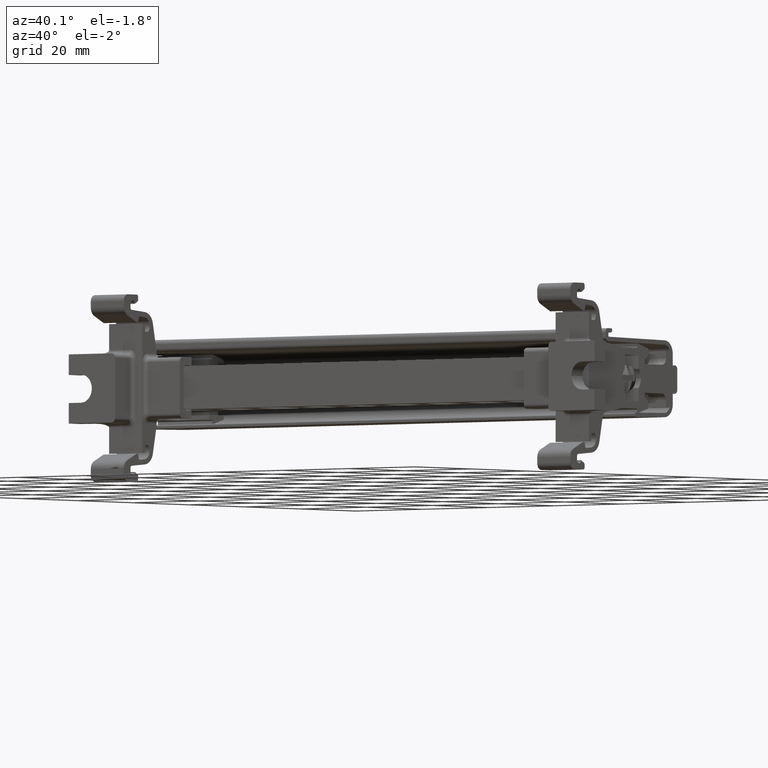
[diagram: clean part render]
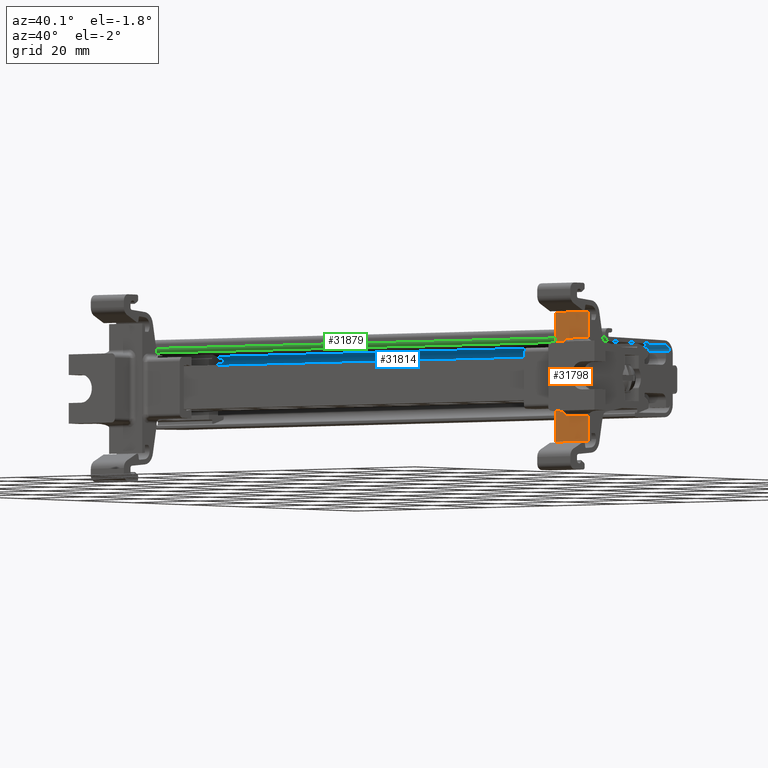
[diagram: same view with three faces highlighted in distinct colors, each labeled with its STEP entity id]
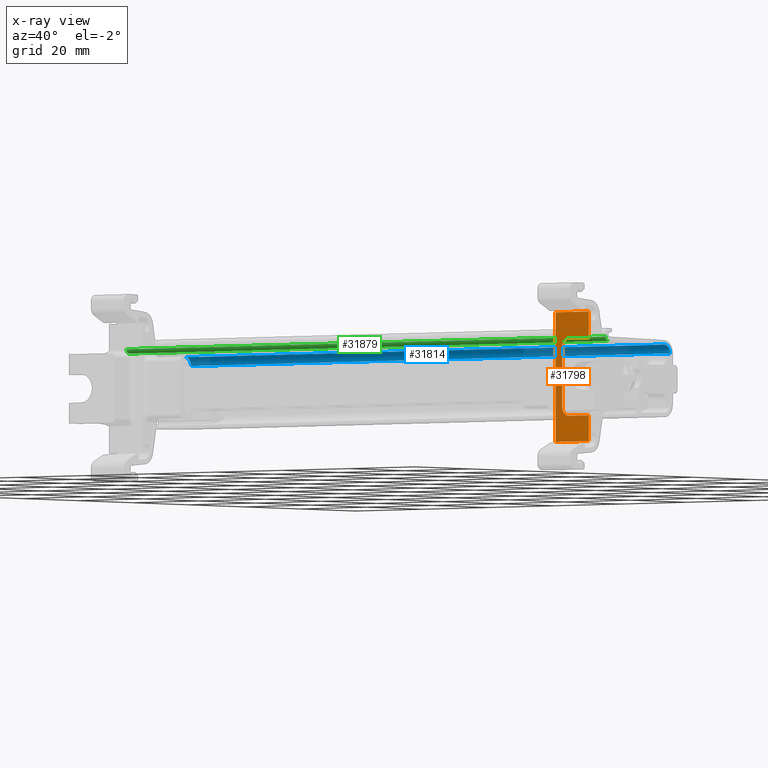
[diagram: x-ray of the same camera — body ghosted, the three highlighted faces saturated]
A machine part, auxiliary view with three faces highlighted in distinct colors.
The next image is the same camera in x-ray (body ghosted, the three faces saturated) — at least one of them is partly hidden behind the body in this view.
Their STEP definitions:

[orange] entity #31798 — the highlighted planar face has unit normal (-0, -1, -0).
#6073 = B_SPLINE_CURVE_WITH_KNOTS ( 'NONE', 3,
 ( #27535, #27526, #27530, #27558, #27536, #27544, #27525, #27537, #27550, #27548, #27516, #27539, #27561, #27521, #27551, #27559, #27560, #27528, #27552, #27553 ),
 .UNSPECIFIED., .F., .F.,
 ( 4, 1, 1, 1, 2, 2, 2, 1, 1, 1, 2, 2, 4 ),
 ( 0.0000000000000000000, 0.1250000000000341100, 0.1875000000000477400, 0.2187500000000546000, 0.2343750000000579800, 0.2500000000000614000, 0.5000000000000715000, 0.6250000000000742700, 0.6875000000000757200, 0.7187500000000736100, 0.7343750000000696100, 0.7500000000000656100, 1.000000000000000000 ),
 .UNSPECIFIED. ) ;
#6101 = B_SPLINE_CURVE_WITH_KNOTS ( 'NONE', 3,
 ( #27565, #27607, #27608, #27612, #27583, #27571, #27566, #27572, #27592, #27567, #27594, #27590, #27574, #27579, #27580, #27575, #27578, #27616, #27618, #27659 ),
 .UNSPECIFIED., .F., .F.,
 ( 4, 1, 1, 1, 2, 2, 2, 1, 1, 1, 2, 2, 4 ),
 ( 0.0000000000000000000, 0.1249999999999758500, 0.1874999999999634500, 0.2187499999999539500, 0.2343749999999497300, 0.2499999999999455200, 0.4999999999999612500, 0.6249999999999680300, 0.6874999999999701400, 0.7187499999999725800, 0.7343749999999738000, 0.7499999999999750200, 1.000000000000000000 ),
 .UNSPECIFIED. ) ;
#6396 = EDGE_CURVE ( 'NONE', #12249, #12316, #14030, .T. ) ;
#6399 = EDGE_CURVE ( 'NONE', #12257, #12317, #14037, .T. ) ;
#9098 = VECTOR ( 'NONE', #27475, 1000.000000000000000 ) ;
#9120 = VECTOR ( 'NONE', #27459, 1000.000000000000000 ) ;
#9132 = VECTOR ( 'NONE', #27438, 1000.000000000000000 ) ;
#9162 = VECTOR ( 'NONE', #27582, 1000.000000000000000 ) ;
#9194 = VECTOR ( 'NONE', #27687, 1000.000000000000000 ) ;
#9202 = VECTOR ( 'NONE', #27642, 1000.000000000000000 ) ;
#9209 = VECTOR ( 'NONE', #27672, 1000.000000000000000 ) ;
#9758 = VECTOR ( 'NONE', #27420, 1000.000000000000000 ) ;
#12249 = VERTEX_POINT ( 'NONE', #18142 ) ;
#12257 = VERTEX_POINT ( 'NONE', #18158 ) ;
#12261 = VERTEX_POINT ( 'NONE', #18172 ) ;
#12269 = VERTEX_POINT ( 'NONE', #18181 ) ;
#12303 = VERTEX_POINT ( 'NONE', #18206 ) ;
#12314 = VERTEX_POINT ( 'NONE', #18236 ) ;
#12316 = VERTEX_POINT ( 'NONE', #18225 ) ;
#12317 = VERTEX_POINT ( 'NONE', #18221 ) ;
#12333 = VERTEX_POINT ( 'NONE', #18247 ) ;
#12336 = VERTEX_POINT ( 'NONE', #18231 ) ;
#14015 = CARTESIAN_POINT ( 'NONE',  ( 45.04730230417584400, 43.96882648293763700, 49.54146295254220400 ) ) ;
#14021 = DIRECTION ( 'NONE',  ( -2.265165414331192000E-043, -2.868178419334055400E-029, 1.000000000000000000 ) ) ;
#14030 = LINE ( 'NONE', #14015, #14261 ) ;
#14035 = DIRECTION ( 'NONE',  ( -2.265165414331192000E-043, -2.868178419334055400E-029, 1.000000000000000000 ) ) ;
#14037 = LINE ( 'NONE', #14038, #14325 ) ;
#14038 = CARTESIAN_POINT ( 'NONE',  ( 45.04730230417590800, 43.96882648293763700, 49.54146295254220400 ) ) ;
#14261 = VECTOR ( 'NONE', #14035, 1000.000000000000000 ) ;
#14325 = VECTOR ( 'NONE', #14021, 1000.000000000000000 ) ;
#15626 = EDGE_LOOP ( 'NONE', ( #18603, #18596, #18664, #18636, #18683, #18612, #18650, #18647, #18687, #18642, #18670, #18656 ) ) ;
#16396 = EDGE_CURVE ( 'NONE', #12336, #12249, #27394, .T. ) ;
#16438 = EDGE_CURVE ( 'NONE', #12316, #12314, #27450, .T. ) ;
#16454 = EDGE_CURVE ( 'NONE', #12314, #33135, #27464, .T. ) ;
#16461 = EDGE_CURVE ( 'NONE', #12317, #12333, #27512, .T. ) ;
#16505 = EDGE_CURVE ( 'NONE', #12261, #12336, #6073, .T. ) ;
#16522 = EDGE_CURVE ( 'NONE', #12269, #12257, #27605, .T. ) ;
#16537 = EDGE_CURVE ( 'NONE', #12333, #12303, #6101, .T. ) ;
#16549 = EDGE_CURVE ( 'NONE', #33144, #12269, #27604, .T. ) ;
#16581 = EDGE_CURVE ( 'NONE', #33135, #33144, #27665, .T. ) ;
#16594 = EDGE_CURVE ( 'NONE', #12303, #12261, #27670, .T. ) ;
#18142 = CARTESIAN_POINT ( 'NONE',  ( 45.04730230417573700, 43.96882648293763700, 47.07664888101834300 ) ) ;
#18158 = CARTESIAN_POINT ( 'NONE',  ( 45.04730230417591500, 43.96882648293763700, 23.07587375111847500 ) ) ;
#18172 = CARTESIAN_POINT ( 'NONE',  ( 37.04730230417585100, 43.96882648293768600, 45.07664888101836500 ) ) ;
#18181 = CARTESIAN_POINT ( 'NONE',  ( 35.04730230417587200, 43.96882648293771500, 23.07587375111845400 ) ) ;
#18206 = CARTESIAN_POINT ( 'NONE',  ( 37.04730230417585800, 43.96882648293769300, 31.07865108636482500 ) ) ;
#18221 = CARTESIAN_POINT ( 'NONE',  ( 45.04730230417582200, 43.96882648293763700, 29.07865108636482500 ) ) ;
#18225 = CARTESIAN_POINT ( 'NONE',  ( 45.04730230417582200, 43.96882648293763700, 53.07942621626468600 ) ) ;
#18231 = CARTESIAN_POINT ( 'NONE',  ( 39.04730230417583700, 43.96882648293766500, 47.07664888101835000 ) ) ;
#18236 = CARTESIAN_POINT ( 'NONE',  ( 35.04730230417581500, 43.96882648293771500, 53.07942621626468600 ) ) ;
#18247 = CARTESIAN_POINT ( 'NONE',  ( 39.04730230417585800, 43.96882648293766500, 29.07865108636482900 ) ) ;
#18596 = ORIENTED_EDGE ( 'NONE', *, *, #16454, .T. ) ;
#18603 = ORIENTED_EDGE ( 'NONE', *, *, #16438, .T. ) ;
#18612 = ORIENTED_EDGE ( 'NONE', *, *, #6399, .T. ) ;
#18636 = ORIENTED_EDGE ( 'NONE', *, *, #16549, .T. ) ;
#18642 = ORIENTED_EDGE ( 'NONE', *, *, #16505, .T. ) ;
#18647 = ORIENTED_EDGE ( 'NONE', *, *, #16537, .T. ) ;
#18650 = ORIENTED_EDGE ( 'NONE', *, *, #16461, .T. ) ;
#18656 = ORIENTED_EDGE ( 'NONE', *, *, #6396, .T. ) ;
#18664 = ORIENTED_EDGE ( 'NONE', *, *, #16581, .T. ) ;
#18670 = ORIENTED_EDGE ( 'NONE', *, *, #16396, .T. ) ;
#18683 = ORIENTED_EDGE ( 'NONE', *, *, #16522, .T. ) ;
#18687 = ORIENTED_EDGE ( 'NONE', *, *, #16594, .T. ) ;
#21372 = AXIS2_PLACEMENT_3D ( 'NONE', #28307, #28309, #28258 ) ;
#21744 = CARTESIAN_POINT ( 'NONE',  ( 35.04730230417583700, 43.96882648293625800, 44.11624998369231300 ) ) ;
#21751 = CARTESIAN_POINT ( 'NONE',  ( 35.04730230417585100, 43.96882648293697600, 32.03904998369085200 ) ) ;
#27394 = LINE ( 'NONE', #27424, #9758 ) ;
#27420 = DIRECTION ( 'NONE',  ( 1.000000000000000000, -7.897574987183420400E-015, 0.0000000000000000000 ) ) ;
#27424 = CARTESIAN_POINT ( 'NONE',  ( 35.04730230417582200, 43.96882648293771500, 47.07664888101834300 ) ) ;
#27438 = DIRECTION ( 'NONE',  ( 2.265165414331192000E-043, 2.868178419334055400E-029, -1.000000000000000000 ) ) ;
#27439 = CARTESIAN_POINT ( 'NONE',  ( 35.04730230417582200, 43.96882648293771500, 53.07942621626467900 ) ) ;
#27450 = LINE ( 'NONE', #27439, #9120 ) ;
#27451 = CARTESIAN_POINT ( 'NONE',  ( 35.04730230417580800, 43.96882648293771500, 49.54146295254220400 ) ) ;
#27459 = DIRECTION ( 'NONE',  ( -1.000000000000000000, 7.897574987183420400E-015, -0.0000000000000000000 ) ) ;
#27464 = LINE ( 'NONE', #27451, #9132 ) ;
#27475 = DIRECTION ( 'NONE',  ( -1.000000000000000000, 7.897574987183420400E-015, -0.0000000000000000000 ) ) ;
#27482 = CARTESIAN_POINT ( 'NONE',  ( 35.04730230417582200, 43.96882648293771500, 29.07865108636482500 ) ) ;
#27512 = LINE ( 'NONE', #27482, #9098 ) ;
#27516 = CARTESIAN_POINT ( 'NONE',  ( 37.73056935672652700, 43.96882648293767900, 46.58839556358166300 ) ) ;
#27521 = CARTESIAN_POINT ( 'NONE',  ( 38.20034925418338600, 43.96882648293768600, 46.88912032210673400 ) ) ;
#27525 = CARTESIAN_POINT ( 'NONE',  ( 37.17622294008984300, 43.96882648293771500, 45.78326460557789800 ) ) ;
#27526 = CARTESIAN_POINT ( 'NONE',  ( 37.04736979277775100, 43.96882648293770800, 45.20389262284343300 ) ) ;
#27528 = CARTESIAN_POINT ( 'NONE',  ( 38.54706164000670300, 43.96882648293769300, 47.02970591532934500 ) ) ;
#27530 = CARTESIAN_POINT ( 'NONE',  ( 37.06497333396355000, 43.96882648293770800, 45.39134910660266100 ) ) ;
#27535 = CARTESIAN_POINT ( 'NONE',  ( 37.04730230417585100, 43.96882648293768600, 45.07664888101836500 ) ) ;
#27536 = CARTESIAN_POINT ( 'NONE',  ( 37.14938035015536100, 43.96882648293771500, 45.70895749568527600 ) ) ;
#27537 = CARTESIAN_POINT ( 'NONE',  ( 37.18138502682836600, 43.96882648293770000, 45.79680999215158000 ) ) ;
#27539 = CARTESIAN_POINT ( 'NONE',  ( 37.88843283582554700, 43.96882648293769300, 46.71721578369330500 ) ) ;
#27544 = CARTESIAN_POINT ( 'NONE',  ( 37.16526712526250300, 43.96882648293769300, 45.75358437573307000 ) ) ;
#27548 = CARTESIAN_POINT ( 'NONE',  ( 37.43812751195525100, 43.96882648293770000, 46.29579620301098000 ) ) ;
#27550 = CARTESIAN_POINT ( 'NONE',  ( 37.28917650561341900, 43.96882648293771500, 46.06929122799113700 ) ) ;
#27551 = CARTESIAN_POINT ( 'NONE',  ( 38.24745555180126600, 43.96882648293768600, 46.90985448139564800 ) ) ;
#27552 = CARTESIAN_POINT ( 'NONE',  ( 38.79245811304793500, 43.96882648293768600, 47.07651371462107200 ) ) ;
#27553 = CARTESIAN_POINT ( 'NONE',  ( 39.04730230417583700, 43.96882648293766500, 47.07664888101835000 ) ) ;
#27558 = CARTESIAN_POINT ( 'NONE',  ( 37.11613983817555600, 43.96882648293770800, 45.60408236194307800 ) ) ;
#27559 = CARTESIAN_POINT ( 'NONE',  ( 38.27910230347804800, 43.96882648293768600, 46.92331309883464000 ) ) ;
#27560 = CARTESIAN_POINT ( 'NONE',  ( 38.29636608786746200, 43.96882648293769300, 46.93038295613157400 ) ) ;
#27561 = CARTESIAN_POINT ( 'NONE',  ( 38.09298136902270900, 43.96882648293767200, 46.83691698518624900 ) ) ;
#27565 = CARTESIAN_POINT ( 'NONE',  ( 39.04730230417585800, 43.96882648293766500, 29.07865108636482900 ) ) ;
#27566 = CARTESIAN_POINT ( 'NONE',  ( 38.34068657961742600, 43.96882648293770000, 29.20757172227878900 ) ) ;
#27567 = CARTESIAN_POINT ( 'NONE',  ( 37.82815498219245900, 43.96882648293771500, 29.46947629413412200 ) ) ;
#27571 = CARTESIAN_POINT ( 'NONE',  ( 38.37036680946317800, 43.96882648293768600, 29.19661590745145200 ) ) ;
#27572 = CARTESIAN_POINT ( 'NONE',  ( 38.32714119304238700, 43.96882648293770000, 29.21273380901766400 ) ) ;
#27574 = CARTESIAN_POINT ( 'NONE',  ( 37.28703420000191900, 43.96882648293769300, 30.12433015121828500 ) ) ;
#27575 = CARTESIAN_POINT ( 'NONE',  ( 37.20063808635846000, 43.96882648293770000, 30.31045108566822300 ) ) ;
#27578 = CARTESIAN_POINT ( 'NONE',  ( 37.19356822906264200, 43.96882648293768600, 30.32771487005565800 ) ) ;
#27579 = CARTESIAN_POINT ( 'NONE',  ( 37.23483086308396400, 43.96882648293770000, 30.23169803637621600 ) ) ;
#27580 = CARTESIAN_POINT ( 'NONE',  ( 37.21409670379645000, 43.96882648293769300, 30.27880433399255700 ) ) ;
#27582 = DIRECTION ( 'NONE',  ( 1.000000000000000000, -7.897574987183420400E-015, 0.0000000000000000000 ) ) ;
#27583 = CARTESIAN_POINT ( 'NONE',  ( 38.41499368951227900, 43.96882648293768600, 29.18072913234429300 ) ) ;
#27590 = CARTESIAN_POINT ( 'NONE',  ( 37.40673540149285300, 43.96882648293769300, 29.91978161802331800 ) ) ;
#27592 = CARTESIAN_POINT ( 'NONE',  ( 38.05465995720777500, 43.96882648293770800, 29.32052528779682600 ) ) ;
#27594 = CARTESIAN_POINT ( 'NONE',  ( 37.53555562160794800, 43.96882648293770000, 29.76191813892054900 ) ) ;
#27596 = CARTESIAN_POINT ( 'NONE',  ( 35.04730230417582200, 43.96882648293771500, 23.07587375111845800 ) ) ;
#27604 = LINE ( 'NONE', #27636, #9202 ) ;
#27605 = LINE ( 'NONE', #27596, #9162 ) ;
#27607 = CARTESIAN_POINT ( 'NONE',  ( 38.92005856235515200, 43.96882648293765800, 29.07871857496671100 ) ) ;
#27608 = CARTESIAN_POINT ( 'NONE',  ( 38.73260207859916400, 43.96882648293769300, 29.09632211615251400 ) ) ;
#27612 = CARTESIAN_POINT ( 'NONE',  ( 38.51986882325683600, 43.96882648293767900, 29.14748862036448100 ) ) ;
#27616 = CARTESIAN_POINT ( 'NONE',  ( 37.09424526986484200, 43.96882648293770800, 30.57841042220776700 ) ) ;
#27618 = CARTESIAN_POINT ( 'NONE',  ( 37.04743747057312900, 43.96882648293770800, 30.82380689524902500 ) ) ;
#27636 = CARTESIAN_POINT ( 'NONE',  ( 35.04730230417584400, 43.96882648293771500, 49.54146295254220400 ) ) ;
#27642 = DIRECTION ( 'NONE',  ( 2.265165414331192000E-043, 2.868178419334055400E-029, -1.000000000000000000 ) ) ;
#27659 = CARTESIAN_POINT ( 'NONE',  ( 37.04730230417585800, 43.96882648293769300, 31.07865108636482500 ) ) ;
#27665 = LINE ( 'NONE', #27679, #9194 ) ;
#27670 = LINE ( 'NONE', #27671, #9209 ) ;
#27671 = CARTESIAN_POINT ( 'NONE',  ( 37.04730230417585800, 43.96882648293770000, 49.54146295254220400 ) ) ;
#27672 = DIRECTION ( 'NONE',  ( -2.265165414331192000E-043, -2.868178419334055400E-029, 1.000000000000000000 ) ) ;
#27679 = CARTESIAN_POINT ( 'NONE',  ( 35.04730230417585800, 43.96882648293771500, 49.54146295254220400 ) ) ;
#27687 = DIRECTION ( 'NONE',  ( 2.265165414331192000E-043, 2.868178419334055400E-029, -1.000000000000000000 ) ) ;
#28185 = FACE_OUTER_BOUND ( 'NONE', #15626, .T. ) ;
#28258 = DIRECTION ( 'NONE',  ( 1.000000000000000000, -7.897574987183420400E-015, 0.0000000000000000000 ) ) ;
#28266 = PLANE ( 'NONE',  #21372 ) ;
#28307 = CARTESIAN_POINT ( 'NONE',  ( 35.04730230417582200, 43.96882648293771500, 49.54146295254220400 ) ) ;
#28309 = DIRECTION ( 'NONE',  ( -7.897574987183420400E-015, -1.000000000000000000, -2.868178419334055400E-029 ) ) ;
#31798 = ADVANCED_FACE ( 'NONE', ( #28185 ), #28266, .T. ) ;
#33135 = VERTEX_POINT ( 'NONE', #21744 ) ;
#33144 = VERTEX_POINT ( 'NONE', #21751 ) ;

[blue] entity #31814 — the highlighted cylindrical surface (edge-blend (fillet) strip) has radius 2 mm, axis along (-1, 0, 0).
#1331 = DIRECTION ( 'NONE',  ( 1.000000000000000000, -9.157197356643954800E-016, -2.520934957069364000E-015 ) ) ;
#1337 = DIRECTION ( 'NONE',  ( 0.0000000000000000000, 6.938893903907102200E-015, 1.000000000000000000 ) ) ;
#1345 = CARTESIAN_POINT ( 'NONE',  ( -99.84769769582477700, 71.21282648293262700, 44.07425025174492100 ) ) ;
#1440 = EDGE_CURVE ( 'NONE', #12164, #12157, #21166, .T. ) ;
#6540 = EDGE_CURVE ( 'NONE', #12164, #12136, #15219, .T. ) ;
#6550 = EDGE_CURVE ( 'NONE', #12157, #12137, #15268, .T. ) ;
#6600 = EDGE_CURVE ( 'NONE', #12137, #12136, #14509, .T. ) ;
#11148 = ORIENTED_EDGE ( 'NONE', *, *, #1440, .F. ) ;
#11155 = ORIENTED_EDGE ( 'NONE', *, *, #6540, .T. ) ;
#11215 = ORIENTED_EDGE ( 'NONE', *, *, #6600, .F. ) ;
#11226 = ORIENTED_EDGE ( 'NONE', *, *, #6550, .F. ) ;
#12136 = VERTEX_POINT ( 'NONE', #18111 ) ;
#12137 = VERTEX_POINT ( 'NONE', #18090 ) ;
#12157 = VERTEX_POINT ( 'NONE', #18094 ) ;
#12164 = VERTEX_POINT ( 'NONE', #18098 ) ;
#12681 = CARTESIAN_POINT ( 'NONE',  ( 44.99230230417516200, 71.21282648293251300, 44.07425025174455200 ) ) ;
#12697 = DIRECTION ( 'NONE',  ( 3.469446951953551100E-015, 0.0000000000000000000, 1.000000000000000000 ) ) ;
#12708 = DIRECTION ( 'NONE',  ( -1.000000000000000000, 9.157197356643954800E-016, 2.520934957069364000E-015 ) ) ;
#14453 = VECTOR ( 'NONE', #15223, 1000.000000000000000 ) ;
#14477 = VECTOR ( 'NONE', #15258, 1000.000000000000000 ) ;
#14505 = AXIS2_PLACEMENT_3D ( 'NONE', #1345, #1331, #1337 ) ;
#14509 = CIRCLE ( 'NONE', #14505, 2.000000000000036400 ) ;
#15205 = CARTESIAN_POINT ( 'NONE',  ( 12.64730230417520800, 71.24773129580735500, 46.07394564205753800 ) ) ;
#15219 = LINE ( 'NONE', #15205, #14453 ) ;
#15223 = DIRECTION ( 'NONE',  ( -1.000000000000000000, 4.426859643412216500E-017, 2.536146191158159700E-015 ) ) ;
#15258 = DIRECTION ( 'NONE',  ( -1.000000000000000000, 9.157197356643954800E-016, 2.520934957069364000E-015 ) ) ;
#15266 = CARTESIAN_POINT ( 'NONE',  ( 12.64730230417517900, 73.21282648293220100, 44.07424903033778900 ) ) ;
#15268 = LINE ( 'NONE', #15266, #14477 ) ;
#15889 = EDGE_LOOP ( 'NONE', ( #11148, #11155, #11215, #11226 ) ) ;
#18090 = CARTESIAN_POINT ( 'NONE',  ( -99.84769769582477700, 73.21282648293228600, 44.07424964104149000 ) ) ;
#18094 = CARTESIAN_POINT ( 'NONE',  ( 44.99230230417516200, 73.21282648293214400, 44.07424964104113500 ) ) ;
#18098 = CARTESIAN_POINT ( 'NONE',  ( 44.99230230417516900, 71.24773129580722800, 46.07394564205745300 ) ) ;
#18111 = CARTESIAN_POINT ( 'NONE',  ( -99.84769769582482000, 71.24773129580727000, 46.07394564205782200 ) ) ;
#21121 = AXIS2_PLACEMENT_3D ( 'NONE', #12681, #12708, #12697 ) ;
#21166 = CIRCLE ( 'NONE', #21121, 2.000000000000036400 ) ;
#21396 = AXIS2_PLACEMENT_3D ( 'NONE', #30650, #30670, #30675 ) ;
#30640 = CYLINDRICAL_SURFACE ( 'NONE', #21396, 2.000000000000036400 ) ;
#30650 = CARTESIAN_POINT ( 'NONE',  ( 12.64730230417517700, 71.21282648293252700, 44.07425025174463700 ) ) ;
#30657 = FACE_OUTER_BOUND ( 'NONE', #15889, .T. ) ;
#30670 = DIRECTION ( 'NONE',  ( -1.000000000000000000, 9.157197356643954800E-016, 2.520934957069364000E-015 ) ) ;
#30675 = DIRECTION ( 'NONE',  ( 2.602085213965163300E-015, 0.0000000000000000000, 1.000000000000000000 ) ) ;
#31814 = ADVANCED_FACE ( 'NONE', ( #30657 ), #30640, .F. ) ;

[green] entity #31879 — the highlighted cylindrical surface (edge-blend (fillet) strip) has radius 1 mm, axis along (-1, 0, 0).
#1320 = LINE ( 'NONE', #1321, #14501 ) ;
#1321 = CARTESIAN_POINT ( 'NONE',  ( 12.64730230417520800, 51.06358122859727900, 46.42626129200161200 ) ) ;
#1324 = DIRECTION ( 'NONE',  ( 1.000000000000000000, -4.426859643412216500E-017, -2.536146191158159700E-015 ) ) ;
#1413 = EDGE_CURVE ( 'NONE', #12150, #12132, #21175, .T. ) ;
#6545 = EDGE_CURVE ( 'NONE', #12142, #12150, #15233, .T. ) ;
#6591 = EDGE_CURVE ( 'NONE', #12142, #12130, #14506, .T. ) ;
#6598 = EDGE_CURVE ( 'NONE', #12132, #12130, #1320, .T. ) ;
#11135 = ORIENTED_EDGE ( 'NONE', *, *, #1413, .T. ) ;
#11136 = ORIENTED_EDGE ( 'NONE', *, *, #6598, .T. ) ;
#11139 = ORIENTED_EDGE ( 'NONE', *, *, #6591, .F. ) ;
#11142 = ORIENTED_EDGE ( 'NONE', *, *, #6545, .T. ) ;
#12130 = VERTEX_POINT ( 'NONE', #18085 ) ;
#12132 = VERTEX_POINT ( 'NONE', #18015 ) ;
#12142 = VERTEX_POINT ( 'NONE', #18125 ) ;
#12150 = VERTEX_POINT ( 'NONE', #18109 ) ;
#12592 = DIRECTION ( 'NONE',  ( 0.0000000000000000000, 0.0000000000000000000, 1.000000000000000000 ) ) ;
#12599 = DIRECTION ( 'NONE',  ( 1.000000000000000000, -9.157197356643954800E-016, -2.520934957069364000E-015 ) ) ;
#12611 = CARTESIAN_POINT ( 'NONE',  ( -99.84769769582480600, 51.08103363503450100, 47.42610898715821600 ) ) ;
#14455 = VECTOR ( 'NONE', #15229, 1000.000000000000000 ) ;
#14494 = AXIS2_PLACEMENT_3D ( 'NONE', #15373, #15354, #15365 ) ;
#14501 = VECTOR ( 'NONE', #1324, 1000.000000000000000 ) ;
#14506 = CIRCLE ( 'NONE', #14494, 1.000000000000000900 ) ;
#15229 = DIRECTION ( 'NONE',  ( -1.000000000000000000, 9.157197356643954800E-016, 2.520934957069364000E-015 ) ) ;
#15231 = CARTESIAN_POINT ( 'NONE',  ( 12.64730230417519700, 50.08103363503439500, 47.42610898715796000 ) ) ;
#15233 = LINE ( 'NONE', #15231, #14455 ) ;
#15354 = DIRECTION ( 'NONE',  ( 1.000000000000000000, -9.157197356643954800E-016, -2.520934957069364000E-015 ) ) ;
#15365 = DIRECTION ( 'NONE',  ( 0.0000000000000000000, 0.0000000000000000000, 1.000000000000000000 ) ) ;
#15373 = CARTESIAN_POINT ( 'NONE',  ( 44.99230230417515500, 51.08103363503437300, 47.42610898715785300 ) ) ;
#16070 = EDGE_LOOP ( 'NONE', ( #11142, #11135, #11136, #11139 ) ) ;
#18015 = CARTESIAN_POINT ( 'NONE',  ( -99.84769769582482000, 51.06358122859725100, 46.42626129200189700 ) ) ;
#18085 = CARTESIAN_POINT ( 'NONE',  ( 44.99230230417516900, 51.06358122859718000, 46.42626129200152700 ) ) ;
#18109 = CARTESIAN_POINT ( 'NONE',  ( -99.84769769582480600, 50.08103329302026900, 47.42610898715823000 ) ) ;
#18125 = CARTESIAN_POINT ( 'NONE',  ( 44.99230230417515500, 50.08103363503460800, 47.42610864058459400 ) ) ;
#21114 = AXIS2_PLACEMENT_3D ( 'NONE', #12611, #12599, #12592 ) ;
#21175 = CIRCLE ( 'NONE', #21114, 1.000000000000000900 ) ;
#21429 = AXIS2_PLACEMENT_3D ( 'NONE', #31246, #31198, #31231 ) ;
#31198 = DIRECTION ( 'NONE',  ( -1.000000000000000000, 9.157197356643954800E-016, 2.520934957069364000E-015 ) ) ;
#31214 = CYLINDRICAL_SURFACE ( 'NONE', #21429, 1.000000000000000900 ) ;
#31231 = DIRECTION ( 'NONE',  ( 1.734723475976805500E-015, 0.0000000000000000000, 1.000000000000000000 ) ) ;
#31245 = FACE_OUTER_BOUND ( 'NONE', #16070, .T. ) ;
#31246 = CARTESIAN_POINT ( 'NONE',  ( 12.64730230417519900, 51.08103363503439500, 47.42610898715793200 ) ) ;
#31879 = ADVANCED_FACE ( 'NONE', ( #31245 ), #31214, .T. ) ;